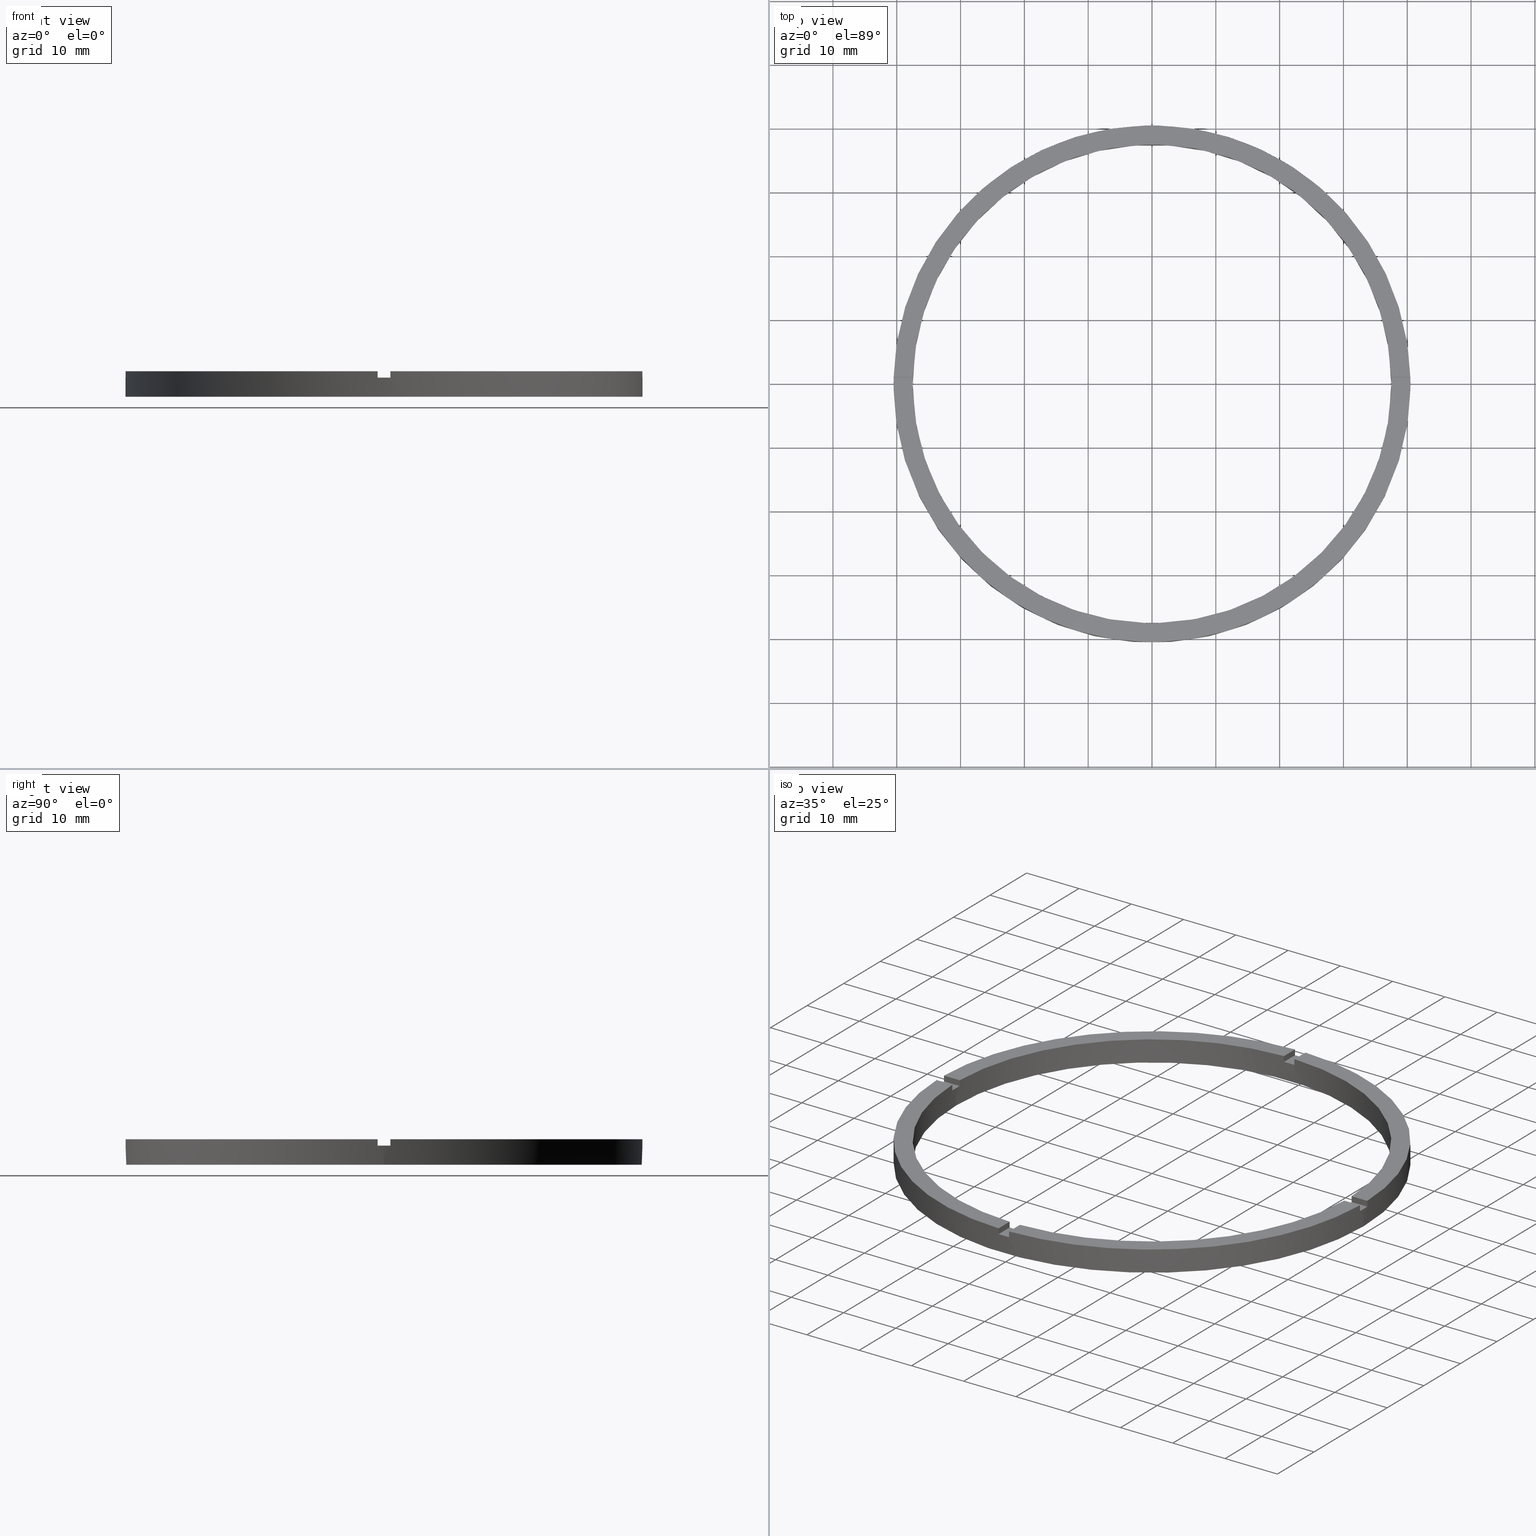
[diagram: canonical four-view strip — front | top / right | iso, engineering-drawing reading convention]
A machine part, canonical four-view strip (front | top / right | iso — engineering-drawing reading convention). The complete STEP part file that produces these views, byte-faithful:
ISO-10303-21;
HEADER;
FILE_DESCRIPTION (( 'STEP AP203' ),
    '1' );
FILE_NAME ('514167.step',
    '2024-12-26T02:44:03',
    ( 'MSI' ),
    ( '' ),
    'SwSTEP 2.0',
    'SolidWorks 2020',
    '' );
FILE_SCHEMA (( 'CONFIG_CONTROL_DESIGN' ));
ENDSEC;

DATA;
#1 = AXIS2_PLACEMENT_3D ( 'NONE', #721, #779, #77 ) ;
#2 = CARTESIAN_POINT ( 'NONE',  ( 37.50000000000000711, 4.592425496802575156E-15, 3.000000000000000000 ) ) ;
#3 = DIRECTION ( 'NONE',  ( 1.000000000000000000, 0.000000000000000000, 0.000000000000000000 ) ) ;
#4 = CARTESIAN_POINT ( 'NONE',  ( -1.000000000000025535, 37.48666429545312440, 3.000000000000000000 ) ) ;
#5 = DIRECTION ( 'NONE',  ( 1.000000000000000000, 0.000000000000000000, -0.000000000000000000 ) ) ;
#6 = EDGE_CURVE ( 'NONE', #411, #124, #618, .T. ) ;
#7 = FACE_OUTER_BOUND ( 'NONE', #764, .T. ) ;
#8 = CARTESIAN_POINT ( 'NONE',  ( 0.000000000000000000, 0.000000000000000000, 4.000000000000000000 ) ) ;
#9 = DIRECTION ( 'NONE',  ( 0.000000000000000000, 0.000000000000000000, 1.000000000000000000 ) ) ;
#10 = CIRCLE ( 'NONE', #291, 37.50000000000000711 ) ;
#11 = CC_DESIGN_DATE_AND_TIME_ASSIGNMENT ( #76, #378, ( #336 ) ) ;
#12 = FACE_OUTER_BOUND ( 'NONE', #150, .T. ) ;
#13 = VECTOR ( 'NONE', #44, 1000.000000000000000 ) ;
#14 = EDGE_CURVE ( 'NONE', #414, #248, #629, .T. ) ;
#15 = CIRCLE ( 'NONE', #506, 37.50000000000000711 ) ;
#16 = DIRECTION ( 'NONE',  ( -0.000000000000000000, -0.000000000000000000, -1.000000000000000000 ) ) ;
#17 = FACE_OUTER_BOUND ( 'NONE', #423, .T. ) ;
#18 = EDGE_CURVE ( 'NONE', #411, #484, #639, .T. ) ;
#19 = DIRECTION ( 'NONE',  ( -1.000000000000000000, 0.000000000000000000, 0.000000000000000000 ) ) ;
#20 = FACE_OUTER_BOUND ( 'NONE', #148, .T. ) ;
#21 = VECTOR ( 'NONE', #475, 1000.000000000000000 ) ;
#22 = AXIS2_PLACEMENT_3D ( 'NONE', #441, #181, #245 ) ;
#23 = CARTESIAN_POINT ( 'NONE',  ( 0.000000000000000000, 0.000000000000000000, 0.000000000000000000 ) ) ;
#24 = DIRECTION ( 'NONE',  ( 1.000000000000000000, 0.000000000000000000, 0.000000000000000000 ) ) ;
#25 = CIRCLE ( 'NONE', #200, 40.50000000000000000 ) ;
#26 = PLANE ( 'NONE',  #686 ) ;
#27 = AXIS2_PLACEMENT_3D ( 'NONE', #8, #151, #205 ) ;
#28 = CARTESIAN_POINT ( 'NONE',  ( -1.000000000000159650, -37.48666429545312440, 4.000000000000000000 ) ) ;
#29 = VECTOR ( 'NONE', #524, 1000.000000000000000 ) ;
#30 = FACE_OUTER_BOUND ( 'NONE', #757, .T. ) ;
#31 = ADVANCED_BREP_SHAPE_REPRESENTATION ( '514167', ( #149, #455 ), #759 ) ;
#32 = CYLINDRICAL_SURFACE ( 'NONE', #211, 40.50000000000000000 ) ;
#33 = CC_DESIGN_APPROVAL ( #602, ( #316 ) ) ;
#34 = DIRECTION ( 'NONE',  ( 1.000000000000000000, 0.000000000000000000, 0.000000000000000000 ) ) ;
#35 = DIRECTION ( 'NONE',  ( 1.000000000000000000, 0.000000000000000000, 0.000000000000000000 ) ) ;
#36 = CIRCLE ( 'NONE', #309, 37.50000000000000711 ) ;
#37 = EDGE_CURVE ( 'NONE', #234, #687, #359, .T. ) ;
#38 = EDGE_CURVE ( 'NONE', #730, #688, #637, .T. ) ;
#39 = DIRECTION ( 'NONE',  ( -1.000000000000000000, -1.951563910473907735E-16, 0.000000000000000000 ) ) ;
#40 = LINE ( 'NONE', #628, #303 ) ;
#41 = CARTESIAN_POINT ( 'NONE',  ( 40.50000000000000000, 4.959819536546780600E-15, 0.000000000000000000 ) ) ;
#42 = DIRECTION ( 'NONE',  ( -1.000000000000000000, 0.000000000000000000, 0.000000000000000000 ) ) ;
#43 = PLANE ( 'NONE',  #481 ) ;
#44 = DIRECTION ( 'NONE',  ( -0.000000000000000000, -0.000000000000000000, -1.000000000000000000 ) ) ;
#45 = EDGE_CURVE ( 'NONE', #255, #730, #87, .T. ) ;
#46 = ADVANCED_FACE ( 'NONE', ( #352 ), #612, .F. ) ;
#47 = VECTOR ( 'NONE', #695, 1000.000000000000000 ) ;
#48 = MECHANICAL_CONTEXT ( 'NONE', #719, 'mechanical' ) ;
#49 =( NAMED_UNIT ( * ) SI_UNIT ( $, .STERADIAN. ) SOLID_ANGLE_UNIT ( ) );
#50 = CARTESIAN_POINT ( 'NONE',  ( 40.50000000000000000, 4.959819536546780600E-15, 4.000000000000000000 ) ) ;
#51 = FACE_OUTER_BOUND ( 'NONE', #250, .T. ) ;
#52 = CIRCLE ( 'NONE', #183, 40.50000000000000000 ) ;
#53 = CARTESIAN_POINT ( 'NONE',  ( -1.000000000000159650, -37.48666429545312440, 3.000000000000000000 ) ) ;
#54 = AXIS2_PLACEMENT_3D ( 'NONE', #534, #483, #120 ) ;
#55 = APPROVAL_STATUS ( 'not_yet_approved' ) ;
#56 = FACE_OUTER_BOUND ( 'NONE', #489, .T. ) ;
#57 = CARTESIAN_POINT ( 'NONE',  ( 0.000000000000000000, 0.000000000000000000, 3.000000000000000000 ) ) ;
#58 = CIRCLE ( 'NONE', #447, 40.50000000000000000 ) ;
#59 = AXIS2_PLACEMENT_3D ( 'NONE', #57, #144, #178 ) ;
#60 = DIRECTION ( 'NONE',  ( -0.000000000000000000, -0.000000000000000000, -1.000000000000000000 ) ) ;
#61 = FACE_OUTER_BOUND ( 'NONE', #631, .T. ) ;
#62 = CIRCLE ( 'NONE', #116, 40.50000000000000000 ) ;
#63 = CARTESIAN_POINT ( 'NONE',  ( 37.48666429545312440, -1.000000000000157208, 4.000000000000000000 ) ) ;
#64 = LINE ( 'NONE', #568, #331 ) ;
#65 = CIRCLE ( 'NONE', #279, 40.50000000000000000 ) ;
#66 = VECTOR ( 'NONE', #339, 1000.000000000000000 ) ;
#67 = CARTESIAN_POINT ( 'NONE',  ( 0.000000000000000000, 0.000000000000000000, 3.000000000000000000 ) ) ;
#68 = AXIS2_PLACEMENT_3D ( 'NONE', #657, #724, #676 ) ;
#69 = LINE ( 'NONE', #546, #320 ) ;
#70 = DATE_AND_TIME ( #333, #100 ) ;
#71 = CYLINDRICAL_SURFACE ( 'NONE', #751, 40.50000000000000000 ) ;
#72 = EDGE_CURVE ( 'NONE', #162, #688, #643, .T. ) ;
#73 = VECTOR ( 'NONE', #529, 1000.000000000000000 ) ;
#74 = CARTESIAN_POINT ( 'NONE',  ( -30.50000000000018829, 0.9999999999999735767, 3.000000000000000000 ) ) ;
#75 = VECTOR ( 'NONE', #209, 1000.000000000000000 ) ;
#76 = DATE_AND_TIME ( #335, #616 ) ;
#77 = DIRECTION ( 'NONE',  ( 1.000000000000000000, 0.000000000000000000, 0.000000000000000000 ) ) ;
#78 = CIRCLE ( 'NONE', #451, 40.50000000000000000 ) ;
#79 = PERSON_AND_ORGANIZATION ( #103, #344 ) ;
#80 = LINE ( 'NONE', #493, #608 ) ;
#81 = COORDINATED_UNIVERSAL_TIME_OFFSET ( 8, 0, .AHEAD. ) ;
#82 = ADVANCED_FACE ( 'NONE', ( #615 ), #478, .F. ) ;
#83 = FACE_OUTER_BOUND ( 'NONE', #744, .T. ) ;
#84 = CARTESIAN_POINT ( 'NONE',  ( 0.000000000000000000, 0.000000000000000000, 4.000000000000000000 ) ) ;
#85 = CALENDAR_DATE ( 2024, 26, 12 ) ;
#86 = CARTESIAN_POINT ( 'NONE',  ( 0.9999999999999744649, 40.48765243873742037, 4.000000000000000000 ) ) ;
#87 = LINE ( 'NONE', #453, #380 ) ;
#88 = DIRECTION ( 'NONE',  ( -0.000000000000000000, -0.000000000000000000, -1.000000000000000000 ) ) ;
#89 = PERSON_AND_ORGANIZATION ( #103, #344 ) ;
#90 = EDGE_CURVE ( 'NONE', #753, #377, #610, .T. ) ;
#91 = CARTESIAN_POINT ( 'NONE',  ( 0.9999999999999744649, 37.48666429545313150, 4.000000000000000000 ) ) ;
#92 = PRODUCT_DEFINITION_SHAPE ( 'NONE', 'NONE',  #336 ) ;
#93 = CIRCLE ( 'NONE', #647, 37.50000000000000711 ) ;
#94 = VECTOR ( 'NONE', #527, 1000.000000000000000 ) ;
#95 = DATE_AND_TIME ( #85, #342 ) ;
#96 = CARTESIAN_POINT ( 'NONE',  ( -1.000000000000025535, 30.50000000000000000, 3.000000000000000000 ) ) ;
#97 = LINE ( 'NONE', #240, #619 ) ;
#98 = APPROVAL_PERSON_ORGANIZATION ( #604, #464, #736 ) ;
#99 = CARTESIAN_POINT ( 'NONE',  ( -1.000000000000025535, 37.48666429545312440, 4.000000000000000000 ) ) ;
#100 = LOCAL_TIME ( 10, 44, 3.000000000000000000, #351 ) ;
#101 = CYLINDRICAL_SURFACE ( 'NONE', #27, 37.50000000000000711 ) ;
#102 = CARTESIAN_POINT ( 'NONE',  ( 30.49999999999999289, 0.9999999999998423483, 4.000000000000000000 ) ) ;
#103 = PERSON ( 'δָ��', 'δָ��', 'δָ��', ('δָ��'), ('δָ��'), ('δָ��') ) ;
#104 = VECTOR ( 'NONE', #470, 1000.000000000000000 ) ;
#105 = CARTESIAN_POINT ( 'NONE',  ( -37.48666429545313150, 0.9999999999999720224, 3.000000000000000000 ) ) ;
#106 = CARTESIAN_POINT ( 'NONE',  ( 0.000000000000000000, 0.000000000000000000, 3.000000000000000000 ) ) ;
#107 = ORIENTED_EDGE ( 'NONE', *, *, #18, .T. ) ;
#108 = VERTEX_POINT ( 'NONE', #127 ) ;
#109 = VECTOR ( 'NONE', #640, 1000.000000000000000 ) ;
#110 = VERTEX_POINT ( 'NONE', #559 ) ;
#111 = DIRECTION ( 'NONE',  ( 1.000000000000000000, 0.000000000000000000, 0.000000000000000000 ) ) ;
#112 = DIRECTION ( 'NONE',  ( 0.000000000000000000, 0.000000000000000000, 1.000000000000000000 ) ) ;
#113 = VECTOR ( 'NONE', #381, 1000.000000000000000 ) ;
#114 = EDGE_CURVE ( 'NONE', #255, #651, #363, .T. ) ;
#115 = CARTESIAN_POINT ( 'NONE',  ( 37.48666429545313150, 0.9999999999998427924, 4.000000000000000000 ) ) ;
#116 = AXIS2_PLACEMENT_3D ( 'NONE', #548, #701, #468 ) ;
#117 = PRODUCT_RELATED_PRODUCT_CATEGORY ( 'detail', '', ( #268 ) ) ;
#118 = CARTESIAN_POINT ( 'NONE',  ( -37.50000000000000711, 0.000000000000000000, 4.000000000000000000 ) ) ;
#119 = EDGE_LOOP ( 'NONE', ( #663, #396, #662, #625 ) ) ;
#120 = DIRECTION ( 'NONE',  ( 1.000000000000000000, 0.000000000000000000, -0.000000000000000000 ) ) ;
#121 = CIRCLE ( 'NONE', #532, 37.50000000000000711 ) ;
#122 = DIRECTION ( 'NONE',  ( 1.000000000000000000, 1.951563910473907735E-16, 0.000000000000000000 ) ) ;
#123 = AXIS2_PLACEMENT_3D ( 'NONE', #262, #145, #5 ) ;
#124 = VERTEX_POINT ( 'NONE', #748 ) ;
#125 = DIRECTION ( 'NONE',  ( -0.000000000000000000, -0.000000000000000000, -1.000000000000000000 ) ) ;
#126 = DIRECTION ( 'NONE',  ( 0.000000000000000000, 0.000000000000000000, 1.000000000000000000 ) ) ;
#127 = CARTESIAN_POINT ( 'NONE',  ( 40.50000000000000000, 4.959819536546780600E-15, 3.000000000000000000 ) ) ;
#128 = ORIENTED_EDGE ( 'NONE', *, *, #574, .F. ) ;
#129 = PLANE ( 'NONE',  #412 ) ;
#130 = ORIENTED_EDGE ( 'NONE', *, *, #599, .F. ) ;
#131 = DIRECTION ( 'NONE',  ( -0.000000000000000000, -0.000000000000000000, -1.000000000000000000 ) ) ;
#132 = EDGE_CURVE ( 'NONE', #398, #511, #356, .T. ) ;
#133 = ORIENTED_EDGE ( 'NONE', *, *, #655, .F. ) ;
#134 = ORIENTED_EDGE ( 'NONE', *, *, #6, .T. ) ;
#135 = PLANE ( 'NONE',  #469 ) ;
#136 = CC_DESIGN_PERSON_AND_ORGANIZATION_ASSIGNMENT ( #609, #722, ( #336 ) ) ;
#137 = ORIENTED_EDGE ( 'NONE', *, *, #498, .F. ) ;
#138 = ORIENTED_EDGE ( 'NONE', *, *, #444, .F. ) ;
#139 = CARTESIAN_POINT ( 'NONE',  ( 0.000000000000000000, 0.000000000000000000, 4.000000000000000000 ) ) ;
#140 = DIRECTION ( 'NONE',  ( -0.000000000000000000, -1.000000000000000000, -0.000000000000000000 ) ) ;
#141 = ORIENTED_EDGE ( 'NONE', *, *, #208, .F. ) ;
#142 = EDGE_CURVE ( 'NONE', #516, #147, #624, .T. ) ;
#143 = ORIENTED_EDGE ( 'NONE', *, *, #467, .T. ) ;
#144 = DIRECTION ( 'NONE',  ( 0.000000000000000000, 0.000000000000000000, 1.000000000000000000 ) ) ;
#145 = DIRECTION ( 'NONE',  ( 0.000000000000000000, -0.000000000000000000, 1.000000000000000000 ) ) ;
#146 = ORIENTED_EDGE ( 'NONE', *, *, #114, .T. ) ;
#147 = VERTEX_POINT ( 'NONE', #323 ) ;
#148 = EDGE_LOOP ( 'NONE', ( #649, #502, #749, #141 ) ) ;
#149 = MANIFOLD_SOLID_BREP ( '�г�-����1', #393 ) ;
#150 = EDGE_LOOP ( 'NONE', ( #168, #680, #210, #429 ) ) ;
#151 = DIRECTION ( 'NONE',  ( -0.000000000000000000, -0.000000000000000000, -1.000000000000000000 ) ) ;
#152 = ORIENTED_EDGE ( 'NONE', *, *, #72, .F. ) ;
#153 = AXIS2_PLACEMENT_3D ( 'NONE', #315, #505, #159 ) ;
#154 = ORIENTED_EDGE ( 'NONE', *, *, #712, .T. ) ;
#155 = ORIENTED_EDGE ( 'NONE', *, *, #267, .F. ) ;
#156 = EDGE_CURVE ( 'NONE', #147, #110, #367, .T. ) ;
#157 = CARTESIAN_POINT ( 'NONE',  ( -1.000000000000159206, -40.48765243873741326, 3.000000000000000000 ) ) ;
#158 = ORIENTED_EDGE ( 'NONE', *, *, #204, .F. ) ;
#159 = DIRECTION ( 'NONE',  ( 1.000000000000000000, 0.000000000000000000, -0.000000000000000000 ) ) ;
#160 = CC_DESIGN_PERSON_AND_ORGANIZATION_ASSIGNMENT ( #461, #716, ( #316 ) ) ;
#161 = ORIENTED_EDGE ( 'NONE', *, *, #772, .T. ) ;
#162 = VERTEX_POINT ( 'NONE', #157 ) ;
#163 = AXIS2_PLACEMENT_3D ( 'NONE', #274, #428, #182 ) ;
#164 = ORIENTED_EDGE ( 'NONE', *, *, #580, .F. ) ;
#165 = EDGE_CURVE ( 'NONE', #740, #399, #605, .T. ) ;
#166 = DIRECTION ( 'NONE',  ( 0.000000000000000000, 0.000000000000000000, 1.000000000000000000 ) ) ;
#167 = CARTESIAN_POINT ( 'NONE',  ( 40.48765243873741326, -1.000000000000156986, 4.000000000000000000 ) ) ;
#168 = ORIENTED_EDGE ( 'NONE', *, *, #498, .T. ) ;
#169 = ORIENTED_EDGE ( 'NONE', *, *, #45, .T. ) ;
#170 = CARTESIAN_POINT ( 'NONE',  ( 0.000000000000000000, 0.000000000000000000, 4.000000000000000000 ) ) ;
#171 = CARTESIAN_POINT ( 'NONE',  ( -37.48666429545312440, -1.000000000000027978, 4.000000000000000000 ) ) ;
#172 = CARTESIAN_POINT ( 'NONE',  ( 0.9999999999998395728, -30.50000000000018119, 3.000000000000000000 ) ) ;
#173 = DIRECTION ( 'NONE',  ( 1.000000000000000000, 0.000000000000000000, 0.000000000000000000 ) ) ;
#174 = CC_DESIGN_APPROVAL ( #272, ( #571 ) ) ;
#175 = EDGE_CURVE ( 'NONE', #768, #693, #579, .T. ) ;
#176 = DIRECTION ( 'NONE',  ( 1.000000000000000000, 0.000000000000000000, 0.000000000000000000 ) ) ;
#177 = DIRECTION ( 'NONE',  ( 1.000000000000000000, 0.000000000000000000, 0.000000000000000000 ) ) ;
#178 = DIRECTION ( 'NONE',  ( 1.000000000000000000, 0.000000000000000000, 0.000000000000000000 ) ) ;
#179 = AXIS2_PLACEMENT_3D ( 'NONE', #436, #425, #35 ) ;
#180 = CARTESIAN_POINT ( 'NONE',  ( 37.48666429545312440, -1.000000000000157208, 4.000000000000000000 ) ) ;
#181 = DIRECTION ( 'NONE',  ( 0.000000000000000000, 0.000000000000000000, 1.000000000000000000 ) ) ;
#182 = DIRECTION ( 'NONE',  ( 1.000000000000000000, 0.000000000000000000, 0.000000000000000000 ) ) ;
#183 = AXIS2_PLACEMENT_3D ( 'NONE', #503, #718, #34 ) ;
#184 = DIRECTION ( 'NONE',  ( 0.000000000000000000, 0.000000000000000000, 1.000000000000000000 ) ) ;
#185 = EDGE_CURVE ( 'NONE', #516, #761, #576, .T. ) ;
#186 = DIRECTION ( 'NONE',  ( 1.000000000000000000, 0.000000000000000000, 0.000000000000000000 ) ) ;
#187 = DATE_AND_TIME ( #708, #463 ) ;
#188 = ADVANCED_FACE ( 'NONE', ( #83 ), #659, .F. ) ;
#189 = DATE_TIME_ROLE ( 'classification_date' ) ;
#190 = PERSON_AND_ORGANIZATION ( #103, #344 ) ;
#191 = COORDINATED_UNIVERSAL_TIME_OFFSET ( 8, 0, .AHEAD. ) ;
#192 = CARTESIAN_POINT ( 'NONE',  ( 0.000000000000000000, 0.000000000000000000, 0.000000000000000000 ) ) ;
#193 = CARTESIAN_POINT ( 'NONE',  ( -40.48765243873742037, 0.9999999999999715783, 4.000000000000000000 ) ) ;
#194 = LOCAL_TIME ( 10, 44, 3.000000000000000000, #704 ) ;
#195 = AXIS2_PLACEMENT_3D ( 'NONE', #235, #486, #122 ) ;
#196 = SHAPE_DEFINITION_REPRESENTATION ( #92, #31 ) ;
#197 = PERSON_AND_ORGANIZATION ( #103, #344 ) ;
#198 = DIRECTION ( 'NONE',  ( 0.000000000000000000, 0.000000000000000000, 1.000000000000000000 ) ) ;
#199 = DIRECTION ( 'NONE',  ( 0.000000000000000000, 0.000000000000000000, 1.000000000000000000 ) ) ;
#200 = AXIS2_PLACEMENT_3D ( 'NONE', #783, #251, #442 ) ;
#201 = ADVANCED_FACE ( 'NONE', ( #340 ), #71, .T. ) ;
#202 = CARTESIAN_POINT ( 'NONE',  ( 40.48765243873742037, 0.9999999999998430145, 4.000000000000000000 ) ) ;
#203 = CARTESIAN_POINT ( 'NONE',  ( 37.48666429545313150, 0.9999999999998427924, 3.000000000000000000 ) ) ;
#204 = EDGE_CURVE ( 'NONE', #108, #124, #78, .T. ) ;
#205 = DIRECTION ( 'NONE',  ( -1.000000000000000000, 0.000000000000000000, 0.000000000000000000 ) ) ;
#206 = CC_DESIGN_PERSON_AND_ORGANIZATION_ASSIGNMENT ( #89, #294, ( #268 ) ) ;
#207 = DIRECTION ( 'NONE',  ( 0.000000000000000000, 0.000000000000000000, 1.000000000000000000 ) ) ;
#208 = EDGE_CURVE ( 'NONE', #509, #693, #601, .T. ) ;
#209 = DIRECTION ( 'NONE',  ( 0.000000000000000000, 0.000000000000000000, 1.000000000000000000 ) ) ;
#210 = ORIENTED_EDGE ( 'NONE', *, *, #329, .F. ) ;
#211 = AXIS2_PLACEMENT_3D ( 'NONE', #330, #88, #19 ) ;
#212 = ORIENTED_EDGE ( 'NONE', *, *, #650, .F. ) ;
#213 = ORIENTED_EDGE ( 'NONE', *, *, #142, .F. ) ;
#214 = CARTESIAN_POINT ( 'NONE',  ( -37.50000000000000711, 0.000000000000000000, 3.000000000000000000 ) ) ;
#215 = ORIENTED_EDGE ( 'NONE', *, *, #14, .F. ) ;
#216 = AXIS2_PLACEMENT_3D ( 'NONE', #707, #691, #176 ) ;
#217 = CARTESIAN_POINT ( 'NONE',  ( 30.49999999999999289, 0.9999999999998423483, 3.000000000000000000 ) ) ;
#218 = ORIENTED_EDGE ( 'NONE', *, *, #518, .F. ) ;
#219 = DIRECTION ( 'NONE',  ( 1.000000000000000000, 1.301042606982605074E-16, 0.000000000000000000 ) ) ;
#220 = ORIENTED_EDGE ( 'NONE', *, *, #257, .T. ) ;
#221 = ORIENTED_EDGE ( 'NONE', *, *, #410, .T. ) ;
#222 = CARTESIAN_POINT ( 'NONE',  ( -40.48765243873742037, 0.9999999999999715783, 4.000000000000000000 ) ) ;
#223 = EDGE_LOOP ( 'NONE', ( #679, #673, #495, #230, #221, #229, #499, #431, #146, #155, #735, #479 ) ) ;
#224 = ORIENTED_EDGE ( 'NONE', *, *, #553, .T. ) ;
#225 = ORIENTED_EDGE ( 'NONE', *, *, #237, .T. ) ;
#226 = ORIENTED_EDGE ( 'NONE', *, *, #185, .F. ) ;
#227 = CARTESIAN_POINT ( 'NONE',  ( 0.000000000000000000, 0.000000000000000000, 4.000000000000000000 ) ) ;
#228 = CARTESIAN_POINT ( 'NONE',  ( -1.000000000000160538, -30.50000000000018119, 3.000000000000000000 ) ) ;
#229 = ORIENTED_EDGE ( 'NONE', *, *, #467, .F. ) ;
#230 = ORIENTED_EDGE ( 'NONE', *, *, #293, .F. ) ;
#231 = CARTESIAN_POINT ( 'NONE',  ( 37.50000000000000711, 4.592425496802575156E-15, 0.000000000000000000 ) ) ;
#232 = ORIENTED_EDGE ( 'NONE', *, *, #90, .F. ) ;
#233 = CARTESIAN_POINT ( 'NONE',  ( -30.50000000000018829, 0.9999999999999735767, 3.000000000000000000 ) ) ;
#234 = VERTEX_POINT ( 'NONE', #448 ) ;
#235 = CARTESIAN_POINT ( 'NONE',  ( -30.50000000000018829, -1.000000000000026423, 3.000000000000000000 ) ) ;
#236 = VERTEX_POINT ( 'NONE', #296 ) ;
#237 = EDGE_CURVE ( 'NONE', #484, #246, #80, .T. ) ;
#238 = ADVANCED_FACE ( 'NONE', ( #56 ), #689, .T. ) ;
#239 = ORIENTED_EDGE ( 'NONE', *, *, #678, .F. ) ;
#240 = CARTESIAN_POINT ( 'NONE',  ( -30.50000000000018829, -1.000000000000026423, 4.000000000000000000 ) ) ;
#241 = EDGE_CURVE ( 'NONE', #768, #627, #69, .T. ) ;
#242 = ORIENTED_EDGE ( 'NONE', *, *, #72, .T. ) ;
#243 = CARTESIAN_POINT ( 'NONE',  ( -37.50000000000000711, 0.000000000000000000, 0.000000000000000000 ) ) ;
#244 = CARTESIAN_POINT ( 'NONE',  ( 0.9999999999999744649, 30.50000000000000000, 3.000000000000000000 ) ) ;
#245 = DIRECTION ( 'NONE',  ( 1.000000000000000000, 0.000000000000000000, 0.000000000000000000 ) ) ;
#246 = VERTEX_POINT ( 'NONE', #203 ) ;
#247 = EDGE_CURVE ( 'NONE', #761, #110, #597, .T. ) ;
#248 = VERTEX_POINT ( 'NONE', #2 ) ;
#249 = ORIENTED_EDGE ( 'NONE', *, *, #513, .F. ) ;
#250 = EDGE_LOOP ( 'NONE', ( #683, #776, #781, #642 ) ) ;
#251 = DIRECTION ( 'NONE',  ( 0.000000000000000000, 0.000000000000000000, 1.000000000000000000 ) ) ;
#252 = VERTEX_POINT ( 'NONE', #382 ) ;
#253 = DIRECTION ( 'NONE',  ( 0.000000000000000000, 0.000000000000000000, 1.000000000000000000 ) ) ;
#254 = EDGE_LOOP ( 'NONE', ( #213, #641, #507, #630 ) ) ;
#255 = VERTEX_POINT ( 'NONE', #53 ) ;
#256 =( LENGTH_UNIT ( ) NAMED_UNIT ( * ) SI_UNIT ( .MILLI., .METRE. ) );
#257 = EDGE_CURVE ( 'NONE', #758, #236, #327, .T. ) ;
#258 = CARTESIAN_POINT ( 'NONE',  ( 0.000000000000000000, 0.000000000000000000, 4.000000000000000000 ) ) ;
#259 = AXIS2_PLACEMENT_3D ( 'NONE', #228, #278, #710 ) ;
#260 = DIRECTION ( 'NONE',  ( 1.000000000000000000, 0.000000000000000000, 0.000000000000000000 ) ) ;
#261 = CARTESIAN_POINT ( 'NONE',  ( 37.48666429545312440, -1.000000000000157208, 3.000000000000000000 ) ) ;
#262 = CARTESIAN_POINT ( 'NONE',  ( 0.000000000000000000, 0.000000000000000000, 3.000000000000000000 ) ) ;
#263 = AXIS2_PLACEMENT_3D ( 'NONE', #233, #328, #419 ) ;
#264 = CARTESIAN_POINT ( 'NONE',  ( 0.9999999999998409050, -40.48765243873742037, 4.000000000000000000 ) ) ;
#265 = EDGE_CURVE ( 'NONE', #729, #108, #324, .T. ) ;
#266 = CARTESIAN_POINT ( 'NONE',  ( 0.000000000000000000, 0.000000000000000000, 0.000000000000000000 ) ) ;
#267 = EDGE_CURVE ( 'NONE', #515, #651, #337, .T. ) ;
#268 = PRODUCT ( '514167', '514167', '', ( #48 ) ) ;
#269 = CARTESIAN_POINT ( 'NONE',  ( 40.48765243873741326, -1.000000000000156986, 4.000000000000000000 ) ) ;
#270 = DIRECTION ( 'NONE',  ( 1.000000000000000000, 0.000000000000000000, 0.000000000000000000 ) ) ;
#271 = CARTESIAN_POINT ( 'NONE',  ( 0.000000000000000000, 0.000000000000000000, 3.000000000000000000 ) ) ;
#272 = APPROVAL ( #55, 'δָ��' ) ;
#273 = ORIENTED_EDGE ( 'NONE', *, *, #237, .F. ) ;
#274 = CARTESIAN_POINT ( 'NONE',  ( 0.000000000000000000, 0.000000000000000000, 3.000000000000000000 ) ) ;
#275 = CARTESIAN_POINT ( 'NONE',  ( -1.000000000000025535, 40.48765243873741326, 4.000000000000000000 ) ) ;
#276 = ORIENTED_EDGE ( 'NONE', *, *, #678, .T. ) ;
#277 = FACE_OUTER_BOUND ( 'NONE', #254, .T. ) ;
#278 = DIRECTION ( 'NONE',  ( -1.000000000000000000, -1.301042606982605074E-16, 0.000000000000000000 ) ) ;
#279 = AXIS2_PLACEMENT_3D ( 'NONE', #397, #556, #694 ) ;
#280 = PLANE ( 'NONE',  #54 ) ;
#281 = CIRCLE ( 'NONE', #22, 40.50000000000000000 ) ;
#282 = CC_DESIGN_SECURITY_CLASSIFICATION ( #316, ( #571 ) ) ;
#283 = LINE ( 'NONE', #762, #21 ) ;
#284 = AXIS2_PLACEMENT_3D ( 'NONE', #217, #472, #572 ) ;
#285 = EDGE_CURVE ( 'NONE', #162, #430, #52, .T. ) ;
#286 = CIRCLE ( 'NONE', #720, 37.50000000000000711 ) ;
#287 = CARTESIAN_POINT ( 'NONE',  ( -37.48666429545312440, -1.000000000000027978, 3.000000000000000000 ) ) ;
#288 = DIRECTION ( 'NONE',  ( 1.000000000000000000, 1.951563910473907735E-16, -0.000000000000000000 ) ) ;
#289 = DIRECTION ( 'NONE',  ( -0.000000000000000000, -0.000000000000000000, -1.000000000000000000 ) ) ;
#290 = ADVANCED_FACE ( 'NONE', ( #322 ), #129, .T. ) ;
#291 = AXIS2_PLACEMENT_3D ( 'NONE', #703, #767, #521 ) ;
#292 = LINE ( 'NONE', #714, #551 ) ;
#293 = EDGE_CURVE ( 'NONE', #766, #384, #581, .T. ) ;
#294 = PERSON_AND_ORGANIZATION_ROLE ( 'design_owner' ) ;
#295 = CIRCLE ( 'NONE', #179, 37.50000000000000711 ) ;
#296 = CARTESIAN_POINT ( 'NONE',  ( -40.50000000000000000, 0.000000000000000000, 0.000000000000000000 ) ) ;
#297 = ADVANCED_FACE ( 'NONE', ( #61 ), #596, .T. ) ;
#298 = APPROVAL_STATUS ( 'not_yet_approved' ) ;
#299 = CARTESIAN_POINT ( 'NONE',  ( -1.000000000000160538, -30.50000000000018119, 4.000000000000000000 ) ) ;
#300 = DIRECTION ( 'NONE',  ( 1.000000000000000000, 0.000000000000000000, 0.000000000000000000 ) ) ;
#301 = CC_DESIGN_APPROVAL ( #464, ( #336 ) ) ;
#302 = DIRECTION ( 'NONE',  ( 1.000000000000000000, 0.000000000000000000, -0.000000000000000000 ) ) ;
#303 = VECTOR ( 'NONE', #554, 1000.000000000000000 ) ;
#304 = PERSON_AND_ORGANIZATION_ROLE ( 'creator' ) ;
#305 = DIRECTION ( 'NONE',  ( -0.000000000000000000, -0.000000000000000000, -1.000000000000000000 ) ) ;
#306 = DIRECTION ( 'NONE',  ( -0.000000000000000000, -0.000000000000000000, -1.000000000000000000 ) ) ;
#307 = PLANE ( 'NONE',  #153 ) ;
#308 = ADVANCED_FACE ( 'NONE', ( #582 ), #600, .F. ) ;
#309 = AXIS2_PLACEMENT_3D ( 'NONE', #106, #565, #585 ) ;
#310 = CARTESIAN_POINT ( 'NONE',  ( 0.9999999999998409050, -40.48765243873742037, 3.000000000000000000 ) ) ;
#311 = CARTESIAN_POINT ( 'NONE',  ( 0.9999999999999744649, 30.50000000000000000, 4.000000000000000000 ) ) ;
#312 = VECTOR ( 'NONE', #317, 1000.000000000000000 ) ;
#313 = AXIS2_PLACEMENT_3D ( 'NONE', #528, #575, #661 ) ;
#314 = LINE ( 'NONE', #747, #562 ) ;
#315 = CARTESIAN_POINT ( 'NONE',  ( 0.000000000000000000, 0.000000000000000000, 4.000000000000000000 ) ) ;
#316 = SECURITY_CLASSIFICATION ( '', '', #541 ) ;
#317 = DIRECTION ( 'NONE',  ( 1.301042606982605074E-16, -1.000000000000000000, 0.000000000000000000 ) ) ;
#318 = CARTESIAN_POINT ( 'NONE',  ( 0.9999999999999744649, 37.48666429545313150, 4.000000000000000000 ) ) ;
#319 = AXIS2_PLACEMENT_3D ( 'NONE', #536, #696, #588 ) ;
#320 = VECTOR ( 'NONE', #140, 1000.000000000000000 ) ;
#321 = EDGE_CURVE ( 'NONE', #398, #430, #64, .T. ) ;
#322 = FACE_OUTER_BOUND ( 'NONE', #418, .T. ) ;
#323 = CARTESIAN_POINT ( 'NONE',  ( 0.9999999999999744649, 40.48765243873742037, 3.000000000000000000 ) ) ;
#324 = CIRCLE ( 'NONE', #715, 40.50000000000000000 ) ;
#325 = VECTOR ( 'NONE', #545, 1000.000000000000000 ) ;
#326 = AXIS2_PLACEMENT_3D ( 'NONE', #665, #773, #670 ) ;
#327 = LINE ( 'NONE', #614, #573 ) ;
#328 = DIRECTION ( 'NONE',  ( -1.951563910473907735E-16, 1.000000000000000000, 0.000000000000000000 ) ) ;
#329 = EDGE_CURVE ( 'NONE', #430, #651, #586, .T. ) ;
#330 = CARTESIAN_POINT ( 'NONE',  ( 0.000000000000000000, 0.000000000000000000, 4.000000000000000000 ) ) ;
#331 = VECTOR ( 'NONE', #289, 1000.000000000000000 ) ;
#332 = DIRECTION ( 'NONE',  ( 1.000000000000000000, 6.505213034913025371E-17, 0.000000000000000000 ) ) ;
#333 = CALENDAR_DATE ( 2024, 26, 12 ) ;
#334 = VECTOR ( 'NONE', #373, 1000.000000000000000 ) ;
#335 = CALENDAR_DATE ( 2024, 26, 12 ) ;
#336 = PRODUCT_DEFINITION ( 'δ֪', '', #571, #370 ) ;
#337 = LINE ( 'NONE', #454, #570 ) ;
#338 = LINE ( 'NONE', #50, #325 ) ;
#339 = DIRECTION ( 'NONE',  ( -1.301042606982605074E-16, 1.000000000000000000, -0.000000000000000000 ) ) ;
#340 = FACE_OUTER_BOUND ( 'NONE', #658, .T. ) ;
#341 = DIRECTION ( 'NONE',  ( 0.000000000000000000, 0.000000000000000000, 1.000000000000000000 ) ) ;
#342 = LOCAL_TIME ( 10, 44, 3.000000000000000000, #606 ) ;
#343 = VECTOR ( 'NONE', #698, 1000.000000000000000 ) ;
#344 = ORGANIZATION ( 'δָ��', 'δָ��', '' ) ;
#345 = VECTOR ( 'NONE', #253, 1000.000000000000000 ) ;
#346 = VECTOR ( 'NONE', #519, 1000.000000000000000 ) ;
#347 = VECTOR ( 'NONE', #462, 1000.000000000000000 ) ;
#348 = CARTESIAN_POINT ( 'NONE',  ( 0.000000000000000000, 0.000000000000000000, 3.000000000000000000 ) ) ;
#349 = APPROVAL_PERSON_ORGANIZATION ( #79, #272, #355 ) ;
#350 = AXIS2_PLACEMENT_3D ( 'NONE', #348, #126, #177 ) ;
#351 = COORDINATED_UNIVERSAL_TIME_OFFSET ( 8, 0, .AHEAD. ) ;
#352 = FACE_OUTER_BOUND ( 'NONE', #644, .T. ) ;
#353 = CIRCLE ( 'NONE', #216, 40.50000000000000000 ) ;
#354 = DIRECTION ( 'NONE',  ( -0.000000000000000000, -0.000000000000000000, -1.000000000000000000 ) ) ;
#355 = APPROVAL_ROLE ( '' ) ;
#356 = CIRCLE ( 'NONE', #1, 40.50000000000000000 ) ;
#357 = FACE_OUTER_BOUND ( 'NONE', #402, .T. ) ;
#358 = DIRECTION ( 'NONE',  ( 0.000000000000000000, 0.000000000000000000, -1.000000000000000000 ) ) ;
#359 = LINE ( 'NONE', #760, #104 ) ;
#360 = AXIS2_PLACEMENT_3D ( 'NONE', #227, #125, #42 ) ;
#361 = LINE ( 'NONE', #514, #567 ) ;
#362 = FACE_OUTER_BOUND ( 'NONE', #223, .T. ) ;
#363 = CIRCLE ( 'NONE', #163, 37.50000000000000711 ) ;
#364 = ORIENTED_EDGE ( 'NONE', *, *, #372, .T. ) ;
#365 = EDGE_LOOP ( 'NONE', ( #385, #741, #531, #504 ) ) ;
#366 = APPLICATION_CONTEXT ( 'configuration controlled 3d designs of mechanical parts and assemblies' ) ;
#367 = LINE ( 'NONE', #86, #626 ) ;
#368 = ORIENTED_EDGE ( 'NONE', *, *, #520, .F. ) ;
#369 = DIRECTION ( 'NONE',  ( -0.000000000000000000, -0.000000000000000000, -1.000000000000000000 ) ) ;
#370 = DESIGN_CONTEXT ( 'detailed design', #366, 'design' ) ;
#371 = ORIENTED_EDGE ( 'NONE', *, *, #403, .F. ) ;
#372 = EDGE_CURVE ( 'NONE', #252, #234, #589, .T. ) ;
#373 = DIRECTION ( 'NONE',  ( -0.000000000000000000, -0.000000000000000000, -1.000000000000000000 ) ) ;
#374 = DIRECTION ( 'NONE',  ( 0.000000000000000000, 0.000000000000000000, 1.000000000000000000 ) ) ;
#375 = ORIENTED_EDGE ( 'NONE', *, *, #563, .T. ) ;
#376 = VECTOR ( 'NONE', #305, 1000.000000000000000 ) ;
#377 = VERTEX_POINT ( 'NONE', #584 ) ;
#378 = DATE_TIME_ROLE ( 'creation_date' ) ;
#379 = CIRCLE ( 'NONE', #59, 37.50000000000000711 ) ;
#380 = VECTOR ( 'NONE', #445, 1000.000000000000000 ) ;
#381 = DIRECTION ( 'NONE',  ( -1.000000000000000000, -6.505213034913025371E-17, -0.000000000000000000 ) ) ;
#382 = CARTESIAN_POINT ( 'NONE',  ( -40.48765243873741326, -1.000000000000028422, 4.000000000000000000 ) ) ;
#383 = ORIENTED_EDGE ( 'NONE', *, *, #635, .F. ) ;
#384 = VERTEX_POINT ( 'NONE', #243 ) ;
#385 = ORIENTED_EDGE ( 'NONE', *, *, #241, .T. ) ;
#386 = ORIENTED_EDGE ( 'NONE', *, *, #471, .F. ) ;
#387 = PERSON_AND_ORGANIZATION_ROLE ( 'design_supplier' ) ;
#388 = EDGE_CURVE ( 'NONE', #677, #511, #603, .T. ) ;
#389 = VECTOR ( 'NONE', #675, 1000.000000000000000 ) ;
#390 = ADVANCED_FACE ( 'NONE', ( #357 ), #770, .T. ) ;
#391 = EDGE_LOOP ( 'NONE', ( #133, #632, #273, #522, #226, #765, #218, #409, #232, #161, #424, #660 ) ) ;
#392 = ORIENTED_EDGE ( 'NONE', *, *, #132, .T. ) ;
#393 = CLOSED_SHELL ( 'NONE', ( #456, #617, #774, #537, #290, #297, #533, #201, #308, #46, #717, #390, #634, #674, #496, #188, #732, #671, #82, #739, #238 ) ) ;
#394 = ORIENTED_EDGE ( 'NONE', *, *, #388, .T. ) ;
#395 = DIRECTION ( 'NONE',  ( 1.000000000000000000, 0.000000000000000000, 0.000000000000000000 ) ) ;
#396 = ORIENTED_EDGE ( 'NONE', *, *, #669, .F. ) ;
#397 = CARTESIAN_POINT ( 'NONE',  ( 0.000000000000000000, 0.000000000000000000, 3.000000000000000000 ) ) ;
#398 = VERTEX_POINT ( 'NONE', #264 ) ;
#399 = VERTEX_POINT ( 'NONE', #4 ) ;
#400 = CARTESIAN_POINT ( 'NONE',  ( 0.9999999999998404610, -37.48666429545313150, 4.000000000000000000 ) ) ;
#401 = ORIENTED_EDGE ( 'NONE', *, *, #265, .F. ) ;
#402 = EDGE_LOOP ( 'NONE', ( #684, #415, #754, #406, #738, #439 ) ) ;
#403 = EDGE_CURVE ( 'NONE', #516, #399, #121, .T. ) ;
#404 = ORIENTED_EDGE ( 'NONE', *, *, #156, .T. ) ;
#405 = AXIS2_PLACEMENT_3D ( 'NONE', #485, #535, #24 ) ;
#406 = ORIENTED_EDGE ( 'NONE', *, *, #410, .F. ) ;
#407 = VERTEX_POINT ( 'NONE', #41 ) ;
#408 = ORIENTED_EDGE ( 'NONE', *, *, #38, .F. ) ;
#409 = ORIENTED_EDGE ( 'NONE', *, *, #763, .T. ) ;
#410 = EDGE_CURVE ( 'NONE', #766, #687, #379, .T. ) ;
#411 = VERTEX_POINT ( 'NONE', #202 ) ;
#412 = AXIS2_PLACEMENT_3D ( 'NONE', #497, #782, #490 ) ;
#413 = ORIENTED_EDGE ( 'NONE', *, *, #553, .F. ) ;
#414 = VERTEX_POINT ( 'NONE', #261 ) ;
#415 = ORIENTED_EDGE ( 'NONE', *, *, #699, .T. ) ;
#416 = ORIENTED_EDGE ( 'NONE', *, *, #257, .F. ) ;
#417 = DIRECTION ( 'NONE',  ( -1.301042606982605074E-16, 1.000000000000000000, 0.000000000000000000 ) ) ;
#418 = EDGE_LOOP ( 'NONE', ( #420, #368, #137, #392 ) ) ;
#419 = DIRECTION ( 'NONE',  ( -1.000000000000000000, -1.951563910473907735E-16, 0.000000000000000000 ) ) ;
#420 = ORIENTED_EDGE ( 'NONE', *, *, #388, .F. ) ;
#421 = ORIENTED_EDGE ( 'NONE', *, *, #780, .F. ) ;
#422 = EDGE_CURVE ( 'NONE', #668, #730, #93, .T. ) ;
#423 = EDGE_LOOP ( 'NONE', ( #636, #492, #733, #212, #215, #276 ) ) ;
#424 = ORIENTED_EDGE ( 'NONE', *, *, #293, .T. ) ;
#425 = DIRECTION ( 'NONE',  ( 0.000000000000000000, 0.000000000000000000, 1.000000000000000000 ) ) ;
#426 = ORIENTED_EDGE ( 'NONE', *, *, #372, .F. ) ;
#427 = ORIENTED_EDGE ( 'NONE', *, *, #728, .T. ) ;
#428 = DIRECTION ( 'NONE',  ( -0.000000000000000000, 0.000000000000000000, 1.000000000000000000 ) ) ;
#429 = ORIENTED_EDGE ( 'NONE', *, *, #321, .F. ) ;
#430 = VERTEX_POINT ( 'NONE', #310 ) ;
#431 = ORIENTED_EDGE ( 'NONE', *, *, #45, .F. ) ;
#432 = CC_DESIGN_PERSON_AND_ORGANIZATION_ASSIGNMENT ( #711, #387, ( #571 ) ) ;
#433 = PLANE ( 'NONE',  #313 ) ;
#434 = ORIENTED_EDGE ( 'NONE', *, *, #700, .T. ) ;
#435 = DIRECTION ( 'NONE',  ( -0.000000000000000000, -0.000000000000000000, -1.000000000000000000 ) ) ;
#436 = CARTESIAN_POINT ( 'NONE',  ( 0.000000000000000000, 0.000000000000000000, 0.000000000000000000 ) ) ;
#437 = ORIENTED_EDGE ( 'NONE', *, *, #38, .T. ) ;
#438 = ORIENTED_EDGE ( 'NONE', *, *, #465, .T. ) ;
#439 = ORIENTED_EDGE ( 'NONE', *, *, #517, .T. ) ;
#440 = PLANE ( 'NONE',  #259 ) ;
#441 = CARTESIAN_POINT ( 'NONE',  ( 0.000000000000000000, 0.000000000000000000, 0.000000000000000000 ) ) ;
#442 = DIRECTION ( 'NONE',  ( 1.000000000000000000, 0.000000000000000000, 0.000000000000000000 ) ) ;
#443 = CARTESIAN_POINT ( 'NONE',  ( 0.000000000000000000, 0.000000000000000000, 3.000000000000000000 ) ) ;
#444 = EDGE_CURVE ( 'NONE', #411, #110, #353, .T. ) ;
#445 = DIRECTION ( 'NONE',  ( 0.000000000000000000, 0.000000000000000000, 1.000000000000000000 ) ) ;
#446 = DIRECTION ( 'NONE',  ( 0.000000000000000000, 0.000000000000000000, 1.000000000000000000 ) ) ;
#447 = AXIS2_PLACEMENT_3D ( 'NONE', #271, #697, #750 ) ;
#448 = CARTESIAN_POINT ( 'NONE',  ( -40.48765243873741326, -1.000000000000028422, 3.000000000000000000 ) ) ;
#449 = CC_DESIGN_DATE_AND_TIME_ASSIGNMENT ( #460, #189, ( #316 ) ) ;
#450 = APPROVAL_ROLE ( '' ) ;
#451 = AXIS2_PLACEMENT_3D ( 'NONE', #443, #374, #186 ) ;
#452 = DIRECTION ( 'NONE',  ( 0.000000000000000000, 0.000000000000000000, 1.000000000000000000 ) ) ;
#453 = CARTESIAN_POINT ( 'NONE',  ( -1.000000000000159650, -37.48666429545312440, 4.000000000000000000 ) ) ;
#454 = CARTESIAN_POINT ( 'NONE',  ( 0.9999999999998404610, -37.48666429545313150, 4.000000000000000000 ) ) ;
#455 = AXIS2_PLACEMENT_3D ( 'NONE', #192, #184, #300 ) ;
#456 = ADVANCED_FACE ( 'NONE', ( #362 ), #101, .F. ) ;
#457 = CARTESIAN_POINT ( 'NONE',  ( -37.48666429545312440, -1.000000000000027978, 4.000000000000000000 ) ) ;
#458 = APPROVAL_DATE_TIME ( #187, #602 ) ;
#459 = APPROVAL_DATE_TIME ( #95, #272 ) ;
#460 = DATE_AND_TIME ( #706, #194 ) ;
#461 = PERSON_AND_ORGANIZATION ( #103, #344 ) ;
#462 = DIRECTION ( 'NONE',  ( 0.000000000000000000, 0.000000000000000000, 1.000000000000000000 ) ) ;
#463 = LOCAL_TIME ( 10, 44, 3.000000000000000000, #191 ) ;
#464 = APPROVAL ( #298, 'δָ��' ) ;
#465 = EDGE_CURVE ( 'NONE', #252, #668, #97, .T. ) ;
#466 = CARTESIAN_POINT ( 'NONE',  ( 0.9999999999999744649, 30.50000000000000000, 3.000000000000000000 ) ) ;
#467 = EDGE_CURVE ( 'NONE', #668, #687, #622, .T. ) ;
#468 = DIRECTION ( 'NONE',  ( 1.000000000000000000, 0.000000000000000000, 0.000000000000000000 ) ) ;
#469 = AXIS2_PLACEMENT_3D ( 'NONE', #266, #199, #302 ) ;
#470 = DIRECTION ( 'NONE',  ( 1.000000000000000000, 1.951563910473907735E-16, -0.000000000000000000 ) ) ;
#471 = EDGE_CURVE ( 'NONE', #124, #246, #361, .T. ) ;
#472 = DIRECTION ( 'NONE',  ( -6.505213034913025371E-17, 1.000000000000000000, 0.000000000000000000 ) ) ;
#473 = EDGE_CURVE ( 'NONE', #377, #693, #557, .T. ) ;
#474 = CARTESIAN_POINT ( 'NONE',  ( 30.49999999999999289, -1.000000000000157652, 4.000000000000000000 ) ) ;
#475 = DIRECTION ( 'NONE',  ( -0.000000000000000000, -0.000000000000000000, -1.000000000000000000 ) ) ;
#476 = ORIENTED_EDGE ( 'NONE', *, *, #580, .T. ) ;
#477 = CARTESIAN_POINT ( 'NONE',  ( 0.9999999999998404610, -37.48666429545313150, 3.000000000000000000 ) ) ;
#478 = PLANE ( 'NONE',  #319 ) ;
#479 = ORIENTED_EDGE ( 'NONE', *, *, #563, .F. ) ;
#480 = ORIENTED_EDGE ( 'NONE', *, *, #422, .F. ) ;
#481 = AXIS2_PLACEMENT_3D ( 'NONE', #244, #523, #358 ) ;
#482 = ORIENTED_EDGE ( 'NONE', *, *, #165, .T. ) ;
#483 = DIRECTION ( 'NONE',  ( 0.000000000000000000, 0.000000000000000000, 1.000000000000000000 ) ) ;
#484 = VERTEX_POINT ( 'NONE', #115 ) ;
#485 = CARTESIAN_POINT ( 'NONE',  ( 0.000000000000000000, 0.000000000000000000, 4.000000000000000000 ) ) ;
#486 = DIRECTION ( 'NONE',  ( 1.951563910473907735E-16, -1.000000000000000000, 0.000000000000000000 ) ) ;
#487 = VERTEX_POINT ( 'NONE', #231 ) ;
#488 = ORIENTED_EDGE ( 'NONE', *, *, #473, .F. ) ;
#489 = EDGE_LOOP ( 'NONE', ( #224, #482, #371, #525 ) ) ;
#490 = DIRECTION ( 'NONE',  ( 1.000000000000000000, 0.000000000000000000, -0.000000000000000000 ) ) ;
#491 =( NAMED_UNIT ( * ) PLANE_ANGLE_UNIT ( ) SI_UNIT ( $, .RADIAN. ) );
#492 = ORIENTED_EDGE ( 'NONE', *, *, #204, .T. ) ;
#493 = CARTESIAN_POINT ( 'NONE',  ( 37.48666429545313150, 0.9999999999998427924, 4.000000000000000000 ) ) ;
#494 = ORIENTED_EDGE ( 'NONE', *, *, #241, .F. ) ;
#495 = ORIENTED_EDGE ( 'NONE', *, *, #712, .F. ) ;
#496 = ADVANCED_FACE ( 'NONE', ( #51 ), #433, .T. ) ;
#497 = CARTESIAN_POINT ( 'NONE',  ( 0.000000000000000000, 0.000000000000000000, 4.000000000000000000 ) ) ;
#498 = EDGE_CURVE ( 'NONE', #398, #515, #40, .T. ) ;
#499 = ORIENTED_EDGE ( 'NONE', *, *, #422, .T. ) ;
#500 = ORIENTED_EDGE ( 'NONE', *, *, #599, .T. ) ;
#501 = ORIENTED_EDGE ( 'NONE', *, *, #37, .F. ) ;
#502 = ORIENTED_EDGE ( 'NONE', *, *, #90, .T. ) ;
#503 = CARTESIAN_POINT ( 'NONE',  ( 0.000000000000000000, 0.000000000000000000, 3.000000000000000000 ) ) ;
#504 = ORIENTED_EDGE ( 'NONE', *, *, #728, .F. ) ;
#505 = DIRECTION ( 'NONE',  ( 0.000000000000000000, 0.000000000000000000, 1.000000000000000000 ) ) ;
#506 = AXIS2_PLACEMENT_3D ( 'NONE', #23, #112, #560 ) ;
#507 = ORIENTED_EDGE ( 'NONE', *, *, #247, .T. ) ;
#508 = EDGE_LOOP ( 'NONE', ( #154, #434 ) ) ;
#509 = VERTEX_POINT ( 'NONE', #633 ) ;
#510 = ORIENTED_EDGE ( 'NONE', *, *, #175, .T. ) ;
#511 = VERTEX_POINT ( 'NONE', #269 ) ;
#512 = EDGE_LOOP ( 'NONE', ( #239, #375, #394, #383 ) ) ;
#513 = EDGE_CURVE ( 'NONE', #255, #162, #555, .T. ) ;
#514 = CARTESIAN_POINT ( 'NONE',  ( 30.49999999999999289, 0.9999999999998423483, 3.000000000000000000 ) ) ;
#515 = VERTEX_POINT ( 'NONE', #400 ) ;
#516 = VERTEX_POINT ( 'NONE', #742 ) ;
#517 = EDGE_CURVE ( 'NONE', #753, #509, #561, .T. ) ;
#518 = EDGE_CURVE ( 'NONE', #627, #399, #314, .T. ) ;
#519 = DIRECTION ( 'NONE',  ( 0.000000000000000000, 0.000000000000000000, 1.000000000000000000 ) ) ;
#520 = EDGE_CURVE ( 'NONE', #515, #677, #583, .T. ) ;
#521 = DIRECTION ( 'NONE',  ( 1.000000000000000000, 0.000000000000000000, 0.000000000000000000 ) ) ;
#522 = ORIENTED_EDGE ( 'NONE', *, *, #669, .T. ) ;
#523 = DIRECTION ( 'NONE',  ( 1.000000000000000000, -0.000000000000000000, 0.000000000000000000 ) ) ;
#524 = DIRECTION ( 'NONE',  ( 0.000000000000000000, 0.000000000000000000, 1.000000000000000000 ) ) ;
#525 = ORIENTED_EDGE ( 'NONE', *, *, #142, .T. ) ;
#526 = DIRECTION ( 'NONE',  ( 1.000000000000000000, 0.000000000000000000, -0.000000000000000000 ) ) ;
#527 = DIRECTION ( 'NONE',  ( 0.000000000000000000, 0.000000000000000000, 1.000000000000000000 ) ) ;
#528 = CARTESIAN_POINT ( 'NONE',  ( 0.000000000000000000, 0.000000000000000000, 3.000000000000000000 ) ) ;
#529 = DIRECTION ( 'NONE',  ( 1.000000000000000000, 6.505213034913025371E-17, 0.000000000000000000 ) ) ;
#530 = CARTESIAN_POINT ( 'NONE',  ( 40.48765243873741326, -1.000000000000156986, 3.000000000000000000 ) ) ;
#531 = ORIENTED_EDGE ( 'NONE', *, *, #165, .F. ) ;
#532 = AXIS2_PLACEMENT_3D ( 'NONE', #67, #542, #395 ) ;
#533 = ADVANCED_FACE ( 'NONE', ( #587, #598 ), #135, .F. ) ;
#534 = CARTESIAN_POINT ( 'NONE',  ( 0.000000000000000000, 0.000000000000000000, 3.000000000000000000 ) ) ;
#535 = DIRECTION ( 'NONE',  ( 0.000000000000000000, 0.000000000000000000, 1.000000000000000000 ) ) ;
#536 = CARTESIAN_POINT ( 'NONE',  ( -1.000000000000025535, 30.50000000000000000, 3.000000000000000000 ) ) ;
#537 = ADVANCED_FACE ( 'NONE', ( #592 ), #307, .T. ) ;
#538 = CARTESIAN_POINT ( 'NONE',  ( 40.48765243873742037, 0.9999999999998430145, 4.000000000000000000 ) ) ;
#539 = LINE ( 'NONE', #578, #13 ) ;
#540 = DIRECTION ( 'NONE',  ( -1.000000000000000000, 0.000000000000000000, 0.000000000000000000 ) ) ;
#541 = SECURITY_CLASSIFICATION_LEVEL ( 'unclassified' ) ;
#542 = DIRECTION ( 'NONE',  ( 0.000000000000000000, -0.000000000000000000, 1.000000000000000000 ) ) ;
#543 = CARTESIAN_POINT ( 'NONE',  ( 0.9999999999998395728, -30.50000000000018119, 3.000000000000000000 ) ) ;
#544 = CIRCLE ( 'NONE', #405, 37.50000000000000711 ) ;
#545 = DIRECTION ( 'NONE',  ( -0.000000000000000000, -0.000000000000000000, -1.000000000000000000 ) ) ;
#546 = CARTESIAN_POINT ( 'NONE',  ( -1.000000000000025535, 30.50000000000000000, 4.000000000000000000 ) ) ;
#547 = FACE_OUTER_BOUND ( 'NONE', #512, .T. ) ;
#548 = CARTESIAN_POINT ( 'NONE',  ( 0.000000000000000000, 0.000000000000000000, 4.000000000000000000 ) ) ;
#549 = FACE_OUTER_BOUND ( 'NONE', #623, .T. ) ;
#550 = LINE ( 'NONE', #167, #29 ) ;
#551 = VECTOR ( 'NONE', #332, 1000.000000000000000 ) ;
#552 = CIRCLE ( 'NONE', #350, 40.50000000000000000 ) ;
#553 = EDGE_CURVE ( 'NONE', #147, #740, #65, .T. ) ;
#554 = DIRECTION ( 'NONE',  ( -1.301042606982605074E-16, 1.000000000000000000, -0.000000000000000000 ) ) ;
#555 = LINE ( 'NONE', #692, #312 ) ;
#556 = DIRECTION ( 'NONE',  ( 0.000000000000000000, -0.000000000000000000, 1.000000000000000000 ) ) ;
#557 = LINE ( 'NONE', #769, #566 ) ;
#558 = AXIS2_PLACEMENT_3D ( 'NONE', #595, #723, #111 ) ;
#559 = CARTESIAN_POINT ( 'NONE',  ( 0.9999999999999744649, 40.48765243873742037, 4.000000000000000000 ) ) ;
#560 = DIRECTION ( 'NONE',  ( 1.000000000000000000, 0.000000000000000000, 0.000000000000000000 ) ) ;
#561 = LINE ( 'NONE', #74, #47 ) ;
#562 = VECTOR ( 'NONE', #16, 1000.000000000000000 ) ;
#563 = EDGE_CURVE ( 'NONE', #414, #677, #594, .T. ) ;
#564 = CARTESIAN_POINT ( 'NONE',  ( -40.50000000000000000, 0.000000000000000000, 3.000000000000000000 ) ) ;
#565 = DIRECTION ( 'NONE',  ( 0.000000000000000000, 0.000000000000000000, 1.000000000000000000 ) ) ;
#566 = VECTOR ( 'NONE', #39, 1000.000000000000000 ) ;
#567 = VECTOR ( 'NONE', #654, 1000.000000000000000 ) ;
#568 = CARTESIAN_POINT ( 'NONE',  ( 0.9999999999998409050, -40.48765243873742037, 4.000000000000000000 ) ) ;
#569 = PLANE ( 'NONE',  #68 ) ;
#570 = VECTOR ( 'NONE', #60, 1000.000000000000000 ) ;
#571 = PRODUCT_DEFINITION_FORMATION_WITH_SPECIFIED_SOURCE ( '�κ�', '', #268, .NOT_KNOWN. ) ;
#572 = DIRECTION ( 'NONE',  ( -1.000000000000000000, -6.505213034913025371E-17, 0.000000000000000000 ) ) ;
#573 = VECTOR ( 'NONE', #306, 1000.000000000000000 ) ;
#574 = EDGE_CURVE ( 'NONE', #509, #758, #58, .T. ) ;
#575 = DIRECTION ( 'NONE',  ( -0.000000000000000000, 0.000000000000000000, 1.000000000000000000 ) ) ;
#576 = LINE ( 'NONE', #318, #347 ) ;
#577 = PLANE ( 'NONE',  #326 ) ;
#578 = CARTESIAN_POINT ( 'NONE',  ( 37.50000000000000711, 4.592425496802575156E-15, 4.000000000000000000 ) ) ;
#579 = CIRCLE ( 'NONE', #607, 40.50000000000000000 ) ;
#580 = EDGE_CURVE ( 'NONE', #108, #407, #338, .T. ) ;
#581 = LINE ( 'NONE', #118, #334 ) ;
#582 = FACE_OUTER_BOUND ( 'NONE', #391, .T. ) ;
#583 = CIRCLE ( 'NONE', #778, 37.50000000000000711 ) ;
#584 = CARTESIAN_POINT ( 'NONE',  ( -37.48666429545313150, 0.9999999999999720224, 4.000000000000000000 ) ) ;
#585 = DIRECTION ( 'NONE',  ( 1.000000000000000000, 0.000000000000000000, 0.000000000000000000 ) ) ;
#586 = LINE ( 'NONE', #543, #66 ) ;
#587 = FACE_OUTER_BOUND ( 'NONE', #746, .T. ) ;
#588 = DIRECTION ( 'NONE',  ( 0.000000000000000000, 0.000000000000000000, 1.000000000000000000 ) ) ;
#589 = LINE ( 'NONE', #664, #593 ) ;
#590 = AXIS2_PLACEMENT_3D ( 'NONE', #709, #446, #526 ) ;
#591 = VECTOR ( 'NONE', #726, 1000.000000000000000 ) ;
#592 = FACE_OUTER_BOUND ( 'NONE', #119, .T. ) ;
#593 = VECTOR ( 'NONE', #435, 1000.000000000000000 ) ;
#594 = LINE ( 'NONE', #63, #75 ) ;
#595 = CARTESIAN_POINT ( 'NONE',  ( 0.000000000000000000, 0.000000000000000000, 3.000000000000000000 ) ) ;
#596 = PLANE ( 'NONE',  #590 ) ;
#597 = LINE ( 'NONE', #311, #591 ) ;
#598 = FACE_BOUND ( 'NONE', #508, .T. ) ;
#599 = EDGE_CURVE ( 'NONE', #252, #688, #62, .T. ) ;
#600 = CYLINDRICAL_SURFACE ( 'NONE', #360, 37.50000000000000711 ) ;
#601 = LINE ( 'NONE', #193, #345 ) ;
#602 = APPROVAL ( #611, 'δָ��' ) ;
#603 = LINE ( 'NONE', #474, #73 ) ;
#604 = PERSON_AND_ORGANIZATION ( #103, #344 ) ;
#605 = LINE ( 'NONE', #96, #343 ) ;
#606 = COORDINATED_UNIVERSAL_TIME_OFFSET ( 8, 0, .AHEAD. ) ;
#607 = AXIS2_PLACEMENT_3D ( 'NONE', #756, #207, #270 ) ;
#608 = VECTOR ( 'NONE', #369, 1000.000000000000000 ) ;
#609 = PERSON_AND_ORGANIZATION ( #103, #344 ) ;
#610 = LINE ( 'NONE', #775, #94 ) ;
#611 = APPROVAL_STATUS ( 'not_yet_approved' ) ;
#612 = PLANE ( 'NONE',  #195 ) ;
#613 = APPROVAL_DATE_TIME ( #70, #464 ) ;
#614 = CARTESIAN_POINT ( 'NONE',  ( -40.50000000000000000, 0.000000000000000000, 4.000000000000000000 ) ) ;
#615 = FACE_OUTER_BOUND ( 'NONE', #365, .T. ) ;
#616 = LOCAL_TIME ( 10, 44, 3.000000000000000000, #81 ) ;
#617 = ADVANCED_FACE ( 'NONE', ( #30 ), #32, .T. ) ;
#618 = LINE ( 'NONE', #538, #376 ) ;
#619 = VECTOR ( 'NONE', #288, 1000.000000000000000 ) ;
#620 = DIRECTION ( 'NONE',  ( 1.000000000000000000, 0.000000000000000000, 0.000000000000000000 ) ) ;
#621 = VECTOR ( 'NONE', #354, 1000.000000000000000 ) ;
#622 = LINE ( 'NONE', #457, #621 ) ;
#623 = EDGE_LOOP ( 'NONE', ( #494, #510, #488, #652 ) ) ;
#624 = LINE ( 'NONE', #466, #109 ) ;
#625 = ORIENTED_EDGE ( 'NONE', *, *, #444, .T. ) ;
#626 = VECTOR ( 'NONE', #166, 1000.000000000000000 ) ;
#627 = VERTEX_POINT ( 'NONE', #99 ) ;
#628 = CARTESIAN_POINT ( 'NONE',  ( 0.9999999999998395728, -30.50000000000018119, 4.000000000000000000 ) ) ;
#629 = CIRCLE ( 'NONE', #558, 37.50000000000000711 ) ;
#630 = ORIENTED_EDGE ( 'NONE', *, *, #156, .F. ) ;
#631 = EDGE_LOOP ( 'NONE', ( #408, #480, #685, #500 ) ) ;
#632 = ORIENTED_EDGE ( 'NONE', *, *, #650, .T. ) ;
#633 = CARTESIAN_POINT ( 'NONE',  ( -40.48765243873742037, 0.9999999999999715783, 3.000000000000000000 ) ) ;
#634 = ADVANCED_FACE ( 'NONE', ( #12 ), #26, .F. ) ;
#635 = EDGE_CURVE ( 'NONE', #729, #511, #550, .T. ) ;
#636 = ORIENTED_EDGE ( 'NONE', *, *, #265, .T. ) ;
#637 = LINE ( 'NONE', #299, #389 ) ;
#638 = ORIENTED_EDGE ( 'NONE', *, *, #656, .T. ) ;
#639 = LINE ( 'NONE', #102, #113 ) ;
#640 = DIRECTION ( 'NONE',  ( 0.000000000000000000, 1.000000000000000000, 0.000000000000000000 ) ) ;
#641 = ORIENTED_EDGE ( 'NONE', *, *, #185, .T. ) ;
#642 = ORIENTED_EDGE ( 'NONE', *, *, #513, .T. ) ;
#643 = LINE ( 'NONE', #666, #346 ) ;
#644 = EDGE_LOOP ( 'NONE', ( #438, #143, #501, #426 ) ) ;
#645 = CARTESIAN_POINT ( 'NONE',  ( -1.000000000000025535, 40.48765243873741326, 3.000000000000000000 ) ) ;
#646 = ORIENTED_EDGE ( 'NONE', *, *, #780, .T. ) ;
#647 = AXIS2_PLACEMENT_3D ( 'NONE', #139, #681, #620 ) ;
#648 = ORIENTED_EDGE ( 'NONE', *, *, #208, .T. ) ;
#649 = ORIENTED_EDGE ( 'NONE', *, *, #517, .F. ) ;
#650 = EDGE_CURVE ( 'NONE', #248, #246, #36, .T. ) ;
#651 = VERTEX_POINT ( 'NONE', #477 ) ;
#652 = ORIENTED_EDGE ( 'NONE', *, *, #763, .F. ) ;
#653 = ORIENTED_EDGE ( 'NONE', *, *, #656, .F. ) ;
#654 = DIRECTION ( 'NONE',  ( -1.000000000000000000, -6.505213034913025371E-17, -0.000000000000000000 ) ) ;
#655 = EDGE_CURVE ( 'NONE', #248, #487, #539, .T. ) ;
#656 = EDGE_CURVE ( 'NONE', #236, #407, #281, .T. ) ;
#657 = CARTESIAN_POINT ( 'NONE',  ( 0.000000000000000000, 0.000000000000000000, 4.000000000000000000 ) ) ;
#658 = EDGE_LOOP ( 'NONE', ( #164, #401, #667, #737, #752, #682, #242, #130, #364, #743, #220, #638 ) ) ;
#659 = PLANE ( 'NONE',  #284 ) ;
#660 = ORIENTED_EDGE ( 'NONE', *, *, #700, .F. ) ;
#661 = DIRECTION ( 'NONE',  ( 1.000000000000000000, 0.000000000000000000, 0.000000000000000000 ) ) ;
#662 = ORIENTED_EDGE ( 'NONE', *, *, #18, .F. ) ;
#663 = ORIENTED_EDGE ( 'NONE', *, *, #247, .F. ) ;
#664 = CARTESIAN_POINT ( 'NONE',  ( -40.48765243873741326, -1.000000000000028422, 4.000000000000000000 ) ) ;
#665 = CARTESIAN_POINT ( 'NONE',  ( 30.49999999999999289, -1.000000000000157652, 3.000000000000000000 ) ) ;
#666 = CARTESIAN_POINT ( 'NONE',  ( -1.000000000000159206, -40.48765243873741326, 4.000000000000000000 ) ) ;
#667 = ORIENTED_EDGE ( 'NONE', *, *, #635, .T. ) ;
#668 = VERTEX_POINT ( 'NONE', #171 ) ;
#669 = EDGE_CURVE ( 'NONE', #484, #761, #544, .T. ) ;
#670 = DIRECTION ( 'NONE',  ( 1.000000000000000000, 6.505213034913025371E-17, 0.000000000000000000 ) ) ;
#671 = ADVANCED_FACE ( 'NONE', ( #17 ), #280, .T. ) ;
#672 = APPLICATION_PROTOCOL_DEFINITION ( 'international standard', 'config_control_design', 1994, #366 ) ;
#673 = ORIENTED_EDGE ( 'NONE', *, *, #655, .T. ) ;
#674 = ADVANCED_FACE ( 'NONE', ( #7 ), #440, .F. ) ;
#675 = DIRECTION ( 'NONE',  ( 1.301042606982605074E-16, -1.000000000000000000, 0.000000000000000000 ) ) ;
#676 = DIRECTION ( 'NONE',  ( 1.000000000000000000, 0.000000000000000000, -0.000000000000000000 ) ) ;
#677 = VERTEX_POINT ( 'NONE', #180 ) ;
#678 = EDGE_CURVE ( 'NONE', #414, #729, #292, .T. ) ;
#679 = ORIENTED_EDGE ( 'NONE', *, *, #14, .T. ) ;
#680 = ORIENTED_EDGE ( 'NONE', *, *, #267, .T. ) ;
#681 = DIRECTION ( 'NONE',  ( 0.000000000000000000, 0.000000000000000000, 1.000000000000000000 ) ) ;
#682 = ORIENTED_EDGE ( 'NONE', *, *, #285, .F. ) ;
#683 = ORIENTED_EDGE ( 'NONE', *, *, #285, .T. ) ;
#684 = ORIENTED_EDGE ( 'NONE', *, *, #574, .T. ) ;
#685 = ORIENTED_EDGE ( 'NONE', *, *, #465, .F. ) ;
#686 = AXIS2_PLACEMENT_3D ( 'NONE', #172, #219, #417 ) ;
#687 = VERTEX_POINT ( 'NONE', #287 ) ;
#688 = VERTEX_POINT ( 'NONE', #771 ) ;
#689 = PLANE ( 'NONE',  #123 ) ;
#690 = AXIS2_PLACEMENT_3D ( 'NONE', #713, #452, #725 ) ;
#691 = DIRECTION ( 'NONE',  ( 0.000000000000000000, 0.000000000000000000, 1.000000000000000000 ) ) ;
#692 = CARTESIAN_POINT ( 'NONE',  ( -1.000000000000160538, -30.50000000000018119, 3.000000000000000000 ) ) ;
#693 = VERTEX_POINT ( 'NONE', #222 ) ;
#694 = DIRECTION ( 'NONE',  ( 1.000000000000000000, 0.000000000000000000, 0.000000000000000000 ) ) ;
#695 = DIRECTION ( 'NONE',  ( -1.000000000000000000, -1.951563910473907735E-16, 0.000000000000000000 ) ) ;
#696 = DIRECTION ( 'NONE',  ( -1.000000000000000000, 0.000000000000000000, 0.000000000000000000 ) ) ;
#697 = DIRECTION ( 'NONE',  ( 0.000000000000000000, 0.000000000000000000, 1.000000000000000000 ) ) ;
#698 = DIRECTION ( 'NONE',  ( -0.000000000000000000, -1.000000000000000000, -0.000000000000000000 ) ) ;
#699 = EDGE_CURVE ( 'NONE', #758, #234, #552, .T. ) ;
#700 = EDGE_CURVE ( 'NONE', #487, #384, #15, .T. ) ;
#701 = DIRECTION ( 'NONE',  ( 0.000000000000000000, 0.000000000000000000, 1.000000000000000000 ) ) ;
#702 = UNCERTAINTY_MEASURE_WITH_UNIT (LENGTH_MEASURE( 1.000000000000000082E-05 ), #256, 'distance_accuracy_value', 'NONE');
#703 = CARTESIAN_POINT ( 'NONE',  ( 0.000000000000000000, 0.000000000000000000, 3.000000000000000000 ) ) ;
#704 = COORDINATED_UNIVERSAL_TIME_OFFSET ( 8, 0, .AHEAD. ) ;
#705 = APPROVAL_PERSON_ORGANIZATION ( #197, #602, #450 ) ;
#706 = CALENDAR_DATE ( 2024, 26, 12 ) ;
#707 = CARTESIAN_POINT ( 'NONE',  ( 0.000000000000000000, 0.000000000000000000, 4.000000000000000000 ) ) ;
#708 = CALENDAR_DATE ( 2024, 26, 12 ) ;
#709 = CARTESIAN_POINT ( 'NONE',  ( 0.000000000000000000, 0.000000000000000000, 4.000000000000000000 ) ) ;
#710 = DIRECTION ( 'NONE',  ( 1.301042606982605074E-16, -1.000000000000000000, 0.000000000000000000 ) ) ;
#711 = PERSON_AND_ORGANIZATION ( #103, #344 ) ;
#712 = EDGE_CURVE ( 'NONE', #384, #487, #295, .T. ) ;
#713 = CARTESIAN_POINT ( 'NONE',  ( 0.000000000000000000, 0.000000000000000000, 3.000000000000000000 ) ) ;
#714 = CARTESIAN_POINT ( 'NONE',  ( 30.49999999999999289, -1.000000000000157652, 3.000000000000000000 ) ) ;
#715 = AXIS2_PLACEMENT_3D ( 'NONE', #731, #198, #260 ) ;
#716 = PERSON_AND_ORGANIZATION_ROLE ( 'classification_officer' ) ;
#717 = ADVANCED_FACE ( 'NONE', ( #20 ), #755, .F. ) ;
#718 = DIRECTION ( 'NONE',  ( -0.000000000000000000, 0.000000000000000000, 1.000000000000000000 ) ) ;
#719 = APPLICATION_CONTEXT ( 'configuration controlled 3d designs of mechanical parts and assemblies' ) ;
#720 = AXIS2_PLACEMENT_3D ( 'NONE', #170, #341, #173 ) ;
#721 = CARTESIAN_POINT ( 'NONE',  ( 0.000000000000000000, 0.000000000000000000, 4.000000000000000000 ) ) ;
#722 = PERSON_AND_ORGANIZATION_ROLE ( 'creator' ) ;
#723 = DIRECTION ( 'NONE',  ( 0.000000000000000000, 0.000000000000000000, 1.000000000000000000 ) ) ;
#724 = DIRECTION ( 'NONE',  ( 0.000000000000000000, 0.000000000000000000, 1.000000000000000000 ) ) ;
#725 = DIRECTION ( 'NONE',  ( 1.000000000000000000, 0.000000000000000000, -0.000000000000000000 ) ) ;
#726 = DIRECTION ( 'NONE',  ( 0.000000000000000000, 1.000000000000000000, 0.000000000000000000 ) ) ;
#727 = CC_DESIGN_PERSON_AND_ORGANIZATION_ASSIGNMENT ( #190, #304, ( #571 ) ) ;
#728 = EDGE_CURVE ( 'NONE', #768, #740, #283, .T. ) ;
#729 = VERTEX_POINT ( 'NONE', #530 ) ;
#730 = VERTEX_POINT ( 'NONE', #28 ) ;
#731 = CARTESIAN_POINT ( 'NONE',  ( 0.000000000000000000, 0.000000000000000000, 3.000000000000000000 ) ) ;
#732 = ADVANCED_FACE ( 'NONE', ( #547 ), #577, .F. ) ;
#733 = ORIENTED_EDGE ( 'NONE', *, *, #471, .T. ) ;
#734 = ORIENTED_EDGE ( 'NONE', *, *, #6, .F. ) ;
#735 = ORIENTED_EDGE ( 'NONE', *, *, #520, .T. ) ;
#736 = APPROVAL_ROLE ( '' ) ;
#737 = ORIENTED_EDGE ( 'NONE', *, *, #132, .F. ) ;
#738 = ORIENTED_EDGE ( 'NONE', *, *, #772, .F. ) ;
#739 = ADVANCED_FACE ( 'NONE', ( #277 ), #43, .F. ) ;
#740 = VERTEX_POINT ( 'NONE', #645 ) ;
#741 = ORIENTED_EDGE ( 'NONE', *, *, #518, .T. ) ;
#742 = CARTESIAN_POINT ( 'NONE',  ( 0.9999999999999744649, 37.48666429545313150, 3.000000000000000000 ) ) ;
#743 = ORIENTED_EDGE ( 'NONE', *, *, #699, .F. ) ;
#744 = EDGE_LOOP ( 'NONE', ( #107, #225, #386, #734 ) ) ;
#745 = ORIENTED_EDGE ( 'NONE', *, *, #175, .F. ) ;
#746 = EDGE_LOOP ( 'NONE', ( #653, #421 ) ) ;
#747 = CARTESIAN_POINT ( 'NONE',  ( -1.000000000000025535, 37.48666429545312440, 4.000000000000000000 ) ) ;
#748 = CARTESIAN_POINT ( 'NONE',  ( 40.48765243873742037, 0.9999999999998430145, 3.000000000000000000 ) ) ;
#749 = ORIENTED_EDGE ( 'NONE', *, *, #473, .T. ) ;
#750 = DIRECTION ( 'NONE',  ( 1.000000000000000000, 0.000000000000000000, 0.000000000000000000 ) ) ;
#751 = AXIS2_PLACEMENT_3D ( 'NONE', #258, #131, #540 ) ;
#752 = ORIENTED_EDGE ( 'NONE', *, *, #321, .T. ) ;
#753 = VERTEX_POINT ( 'NONE', #105 ) ;
#754 = ORIENTED_EDGE ( 'NONE', *, *, #37, .T. ) ;
#755 = PLANE ( 'NONE',  #263 ) ;
#756 = CARTESIAN_POINT ( 'NONE',  ( 0.000000000000000000, 0.000000000000000000, 4.000000000000000000 ) ) ;
#757 = EDGE_LOOP ( 'NONE', ( #158, #476, #646, #416, #128, #648, #745, #427, #413, #404, #138, #134 ) ) ;
#758 = VERTEX_POINT ( 'NONE', #564 ) ;
#759 =( GEOMETRIC_REPRESENTATION_CONTEXT ( 3 ) GLOBAL_UNCERTAINTY_ASSIGNED_CONTEXT ( ( #702 ) ) GLOBAL_UNIT_ASSIGNED_CONTEXT ( ( #256, #491, #49 ) ) REPRESENTATION_CONTEXT ( 'NONE', 'WORKASPACE' ) );
#760 = CARTESIAN_POINT ( 'NONE',  ( -30.50000000000018829, -1.000000000000026423, 3.000000000000000000 ) ) ;
#761 = VERTEX_POINT ( 'NONE', #91 ) ;
#762 = CARTESIAN_POINT ( 'NONE',  ( -1.000000000000025535, 40.48765243873741326, 4.000000000000000000 ) ) ;
#763 = EDGE_CURVE ( 'NONE', #627, #377, #286, .T. ) ;
#764 = EDGE_LOOP ( 'NONE', ( #249, #169, #437, #152 ) ) ;
#765 = ORIENTED_EDGE ( 'NONE', *, *, #403, .T. ) ;
#766 = VERTEX_POINT ( 'NONE', #214 ) ;
#767 = DIRECTION ( 'NONE',  ( 0.000000000000000000, 0.000000000000000000, 1.000000000000000000 ) ) ;
#768 = VERTEX_POINT ( 'NONE', #275 ) ;
#769 = CARTESIAN_POINT ( 'NONE',  ( -30.50000000000018829, 0.9999999999999735767, 4.000000000000000000 ) ) ;
#770 = PLANE ( 'NONE',  #690 ) ;
#771 = CARTESIAN_POINT ( 'NONE',  ( -1.000000000000159206, -40.48765243873741326, 4.000000000000000000 ) ) ;
#772 = EDGE_CURVE ( 'NONE', #753, #766, #10, .T. ) ;
#773 = DIRECTION ( 'NONE',  ( 6.505213034913025371E-17, -1.000000000000000000, 0.000000000000000000 ) ) ;
#774 = ADVANCED_FACE ( 'NONE', ( #549 ), #569, .T. ) ;
#775 = CARTESIAN_POINT ( 'NONE',  ( -37.48666429545313150, 0.9999999999999720224, 4.000000000000000000 ) ) ;
#776 = ORIENTED_EDGE ( 'NONE', *, *, #329, .T. ) ;
#777 = APPLICATION_PROTOCOL_DEFINITION ( 'international standard', 'config_control_design', 1994, #719 ) ;
#778 = AXIS2_PLACEMENT_3D ( 'NONE', #84, #9, #3 ) ;
#779 = DIRECTION ( 'NONE',  ( 0.000000000000000000, 0.000000000000000000, 1.000000000000000000 ) ) ;
#780 = EDGE_CURVE ( 'NONE', #407, #236, #25, .T. ) ;
#781 = ORIENTED_EDGE ( 'NONE', *, *, #114, .F. ) ;
#782 = DIRECTION ( 'NONE',  ( 0.000000000000000000, 0.000000000000000000, 1.000000000000000000 ) ) ;
#783 = CARTESIAN_POINT ( 'NONE',  ( 0.000000000000000000, 0.000000000000000000, 0.000000000000000000 ) ) ;
ENDSEC;
END-ISO-10303-21;
